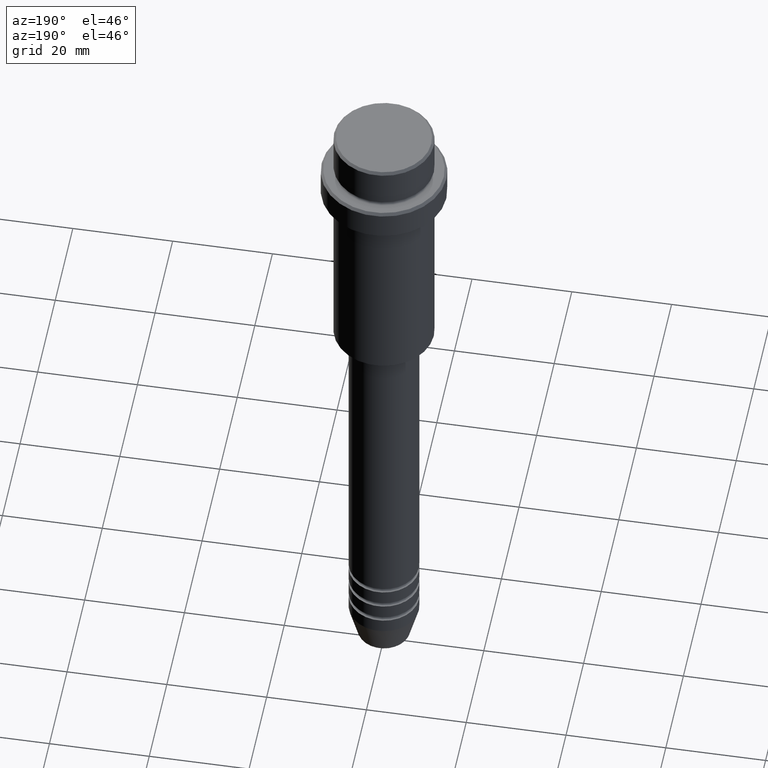
[diagram: clean part render]
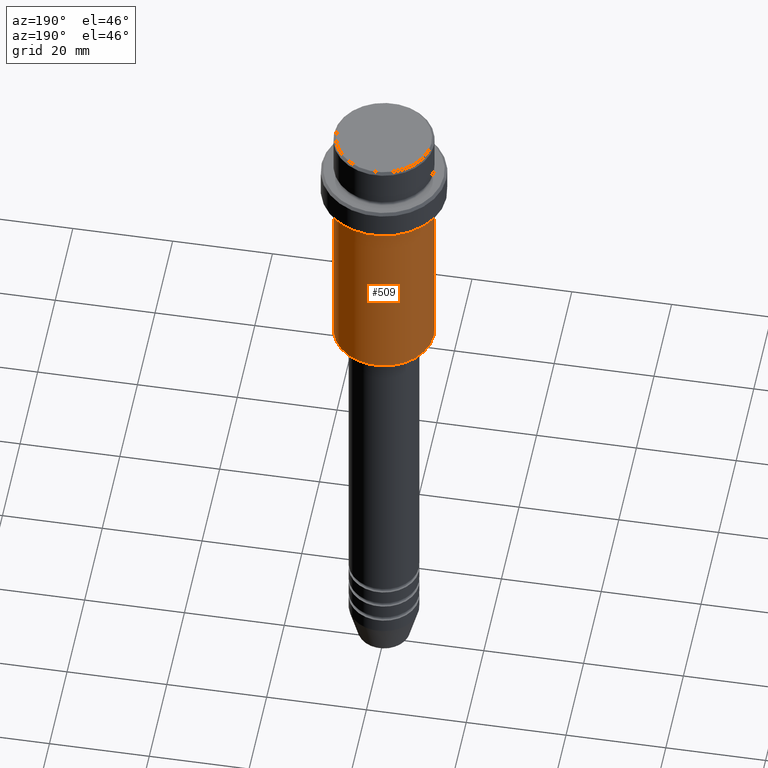
[diagram: same view with one face highlighted and labeled with its STEP entity id]
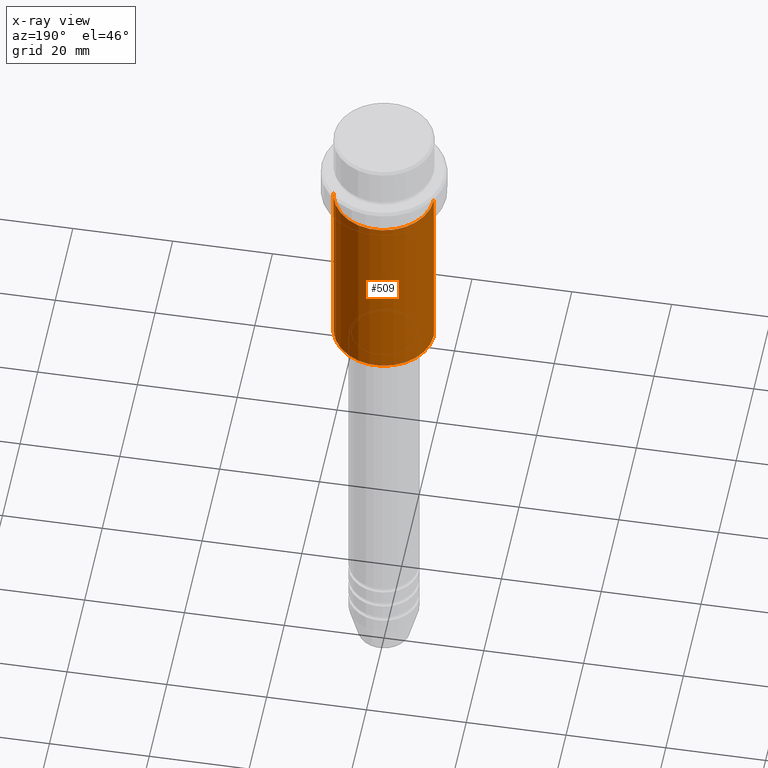
[diagram: x-ray of the same camera — body ghosted, the highlighted face saturated]
A machine part, auxiliary view. The second image highlights one B-rep face of the part: STEP entity #509.
The next image is the same camera in x-ray: the body ghosted, the highlighted face saturated — about 0% of this face is hidden behind the body in this view.
In plain terms, the highlighted cylindrical surface (partial cylindrical patch) has radius 10 mm, axis along (-0, -0, 1).
Its self-contained STEP definition (entity closure, byte-faithful):
#59 = DIRECTION ( 'NONE',  ( -1.000000000000000000, 0.000000000000000000, 0.000000000000000000 ) ) ;
#79 = DIRECTION ( 'NONE',  ( 1.000000000000000000, 0.000000000000000000, 0.000000000000000000 ) ) ;
#207 = DIRECTION ( 'NONE',  ( -0.000000000000000000, -0.000000000000000000, 1.000000000000000000 ) ) ;
#320 = DIRECTION ( 'NONE',  ( 1.000000000000000000, 0.000000000000000000, 0.000000000000000000 ) ) ;
#387 = ORIENTED_EDGE ( 'NONE', *, *, #767, .T. ) ;
#452 = ORIENTED_EDGE ( 'NONE', *, *, #712, .T. ) ;
#509 = ADVANCED_FACE ( 'NONE', ( #1069 ), #1311, .T. ) ;
#544 = EDGE_LOOP ( 'NONE', ( #387, #452, #1011, #1376 ) ) ;
#562 = VECTOR ( 'NONE', #207, 1000.000000000000000 ) ;
#587 = CIRCLE ( 'NONE', #1318, 9.999999999999998224 ) ;
#600 = CARTESIAN_POINT ( 'NONE',  ( 0.000000000000000000, 0.000000000000000000, -54.50000000000000711 ) ) ;
#662 = LINE ( 'NONE', #684, #691 ) ;
#684 = CARTESIAN_POINT ( 'NONE',  ( -9.999999999999998224, 1.224646799147353059E-15, 0.000000000000000000 ) ) ;
#688 = VERTEX_POINT ( 'NONE', #866 ) ;
#691 = VECTOR ( 'NONE', #1008, 1000.000000000000000 ) ;
#712 = EDGE_CURVE ( 'NONE', #1115, #1339, #662, .T. ) ;
#741 = LINE ( 'NONE', #756, #562 ) ;
#756 = CARTESIAN_POINT ( 'NONE',  ( 9.999999999999998224, 0.000000000000000000, 0.000000000000000000 ) ) ;
#767 = EDGE_CURVE ( 'NONE', #799, #1115, #869, .T. ) ;
#799 = VERTEX_POINT ( 'NONE', #1233 ) ;
#802 = AXIS2_PLACEMENT_3D ( 'NONE', #854, #1412, #320 ) ;
#854 = CARTESIAN_POINT ( 'NONE',  ( 0.000000000000000000, 0.000000000000000000, 0.000000000000000000 ) ) ;
#866 = CARTESIAN_POINT ( 'NONE',  ( 9.999999999999998224, 0.000000000000000000, -16.00000000000000000 ) ) ;
#869 = CIRCLE ( 'NONE', #1357, 9.999999999999998224 ) ;
#1008 = DIRECTION ( 'NONE',  ( -0.000000000000000000, -0.000000000000000000, 1.000000000000000000 ) ) ;
#1011 = ORIENTED_EDGE ( 'NONE', *, *, #1309, .F. ) ;
#1069 = FACE_OUTER_BOUND ( 'NONE', #544, .T. ) ;
#1085 = DIRECTION ( 'NONE',  ( -0.000000000000000000, -0.000000000000000000, 1.000000000000000000 ) ) ;
#1115 = VERTEX_POINT ( 'NONE', #1335 ) ;
#1138 = DIRECTION ( 'NONE',  ( -0.000000000000000000, -0.000000000000000000, 1.000000000000000000 ) ) ;
#1175 = CARTESIAN_POINT ( 'NONE',  ( -9.999999999999998224, 1.224646799147353059E-15, -16.00000000000000000 ) ) ;
#1233 = CARTESIAN_POINT ( 'NONE',  ( 9.999999999999998224, 0.000000000000000000, -54.50000000000000711 ) ) ;
#1309 = EDGE_CURVE ( 'NONE', #688, #1339, #587, .T. ) ;
#1311 = CYLINDRICAL_SURFACE ( 'NONE', #802, 9.999999999999998224 ) ;
#1318 = AXIS2_PLACEMENT_3D ( 'NONE', #1411, #1085, #79 ) ;
#1335 = CARTESIAN_POINT ( 'NONE',  ( -9.999999999999998224, 1.224646799147353059E-15, -54.50000000000000711 ) ) ;
#1339 = VERTEX_POINT ( 'NONE', #1175 ) ;
#1357 = AXIS2_PLACEMENT_3D ( 'NONE', #600, #1138, #59 ) ;
#1376 = ORIENTED_EDGE ( 'NONE', *, *, #1385, .F. ) ;
#1385 = EDGE_CURVE ( 'NONE', #799, #688, #741, .T. ) ;
#1411 = CARTESIAN_POINT ( 'NONE',  ( 0.000000000000000000, 0.000000000000000000, -16.00000000000000000 ) ) ;
#1412 = DIRECTION ( 'NONE',  ( -0.000000000000000000, -0.000000000000000000, 1.000000000000000000 ) ) ;